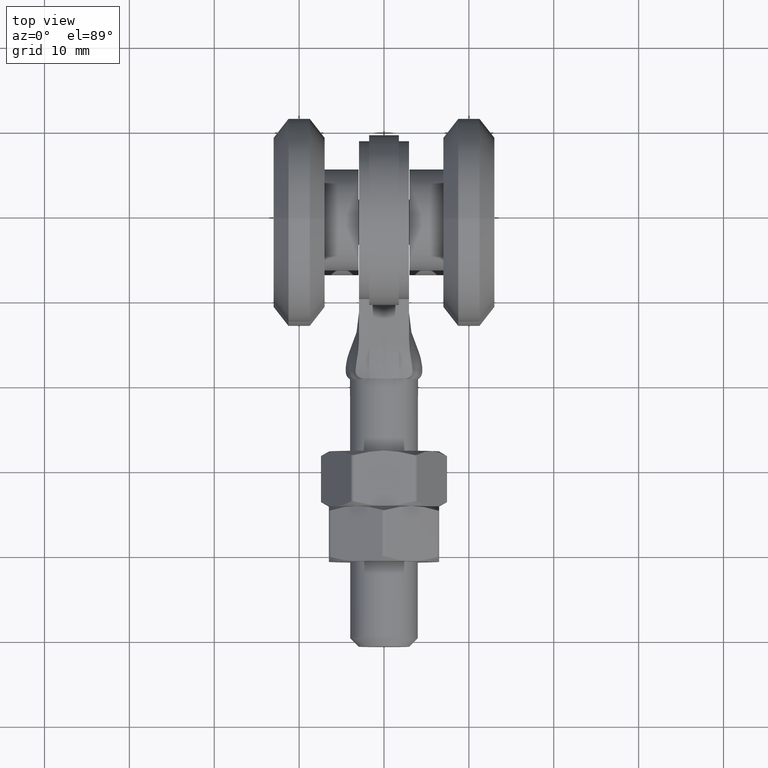
[diagram: clean part render]
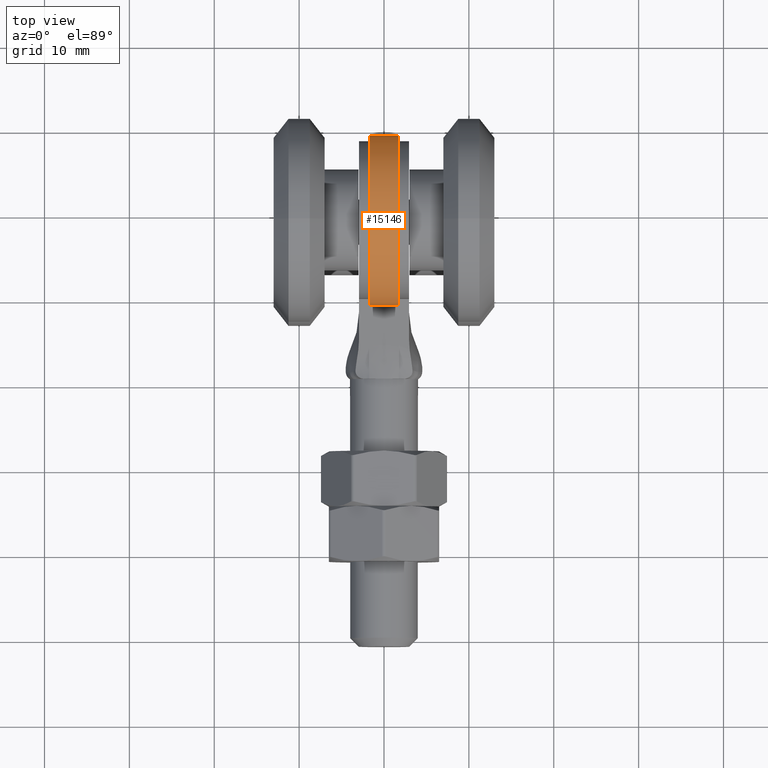
[diagram: same view with one face highlighted and labeled with its STEP entity id]
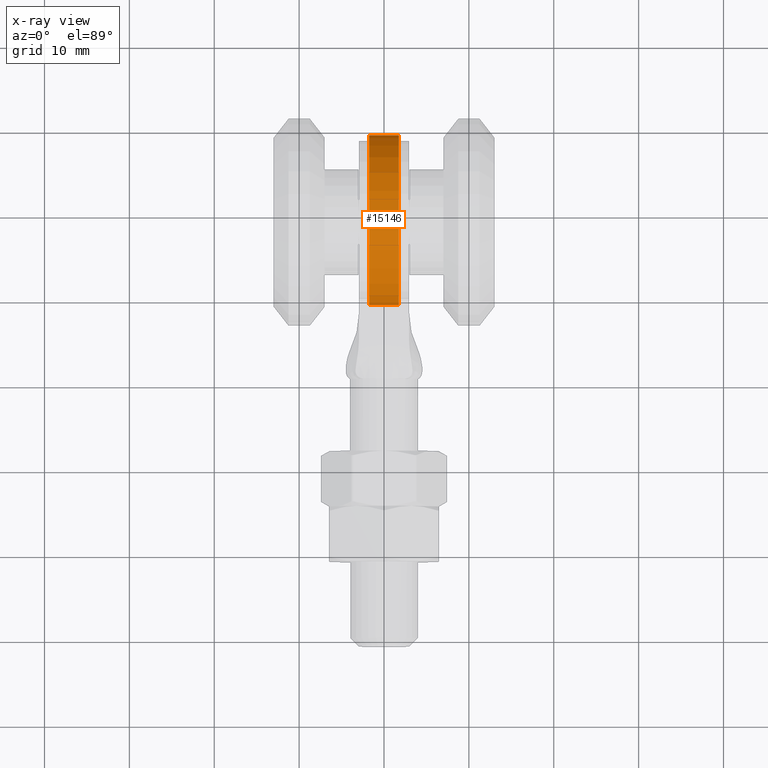
[diagram: x-ray of the same camera — body ghosted, the highlighted face saturated]
A machine part, top view. The second image highlights one B-rep face of the part: STEP entity #15146.
The next image is the same camera in x-ray: the body ghosted, the highlighted face saturated — about 0% of this face is hidden behind the body in this view.
In plain terms, the highlighted cylindrical surface (partial cylindrical patch) has radius 10 mm, axis along (-1, -0, -0).
Its self-contained STEP definition (entity closure, byte-faithful):
#1503 = ORIENTED_EDGE ( 'NONE', *, *, #23207, .T. ) ;
#1582 = CARTESIAN_POINT ( 'NONE',  ( 1.750000000000000444, 10.20014204660097334, 10.25000000000000533 ) ) ;
#2911 = CYLINDRICAL_SURFACE ( 'NONE', #24020, 9.999999999999998224 ) ;
#3755 = CIRCLE ( 'NONE', #5638, 10.00000000000000000 ) ;
#3759 = EDGE_LOOP ( 'NONE', ( #7013, #6142, #12256, #1503 ) ) ;
#3802 = DIRECTION ( 'NONE',  ( 1.000000000000000000, 0.000000000000000000, 0.000000000000000000 ) ) ;
#4246 = VERTEX_POINT ( 'NONE', #11110 ) ;
#4956 = CARTESIAN_POINT ( 'NONE',  ( -1.750000000000000444, 18.99999999999999645, 15.00000000000000355 ) ) ;
#5002 = DIRECTION ( 'NONE',  ( 0.000000000000000000, 0.000000000000000000, 1.000000000000000000 ) ) ;
#5187 = VERTEX_POINT ( 'NONE', #1582 ) ;
#5638 = AXIS2_PLACEMENT_3D ( 'NONE', #4956, #20724, #20536 ) ;
#6142 = ORIENTED_EDGE ( 'NONE', *, *, #26174, .F. ) ;
#7013 = ORIENTED_EDGE ( 'NONE', *, *, #7355, .T. ) ;
#7355 = EDGE_CURVE ( 'NONE', #20557, #4246, #3755, .T. ) ;
#7425 = CARTESIAN_POINT ( 'NONE',  ( 2.950000000000000178, 18.99999999999999645, 15.00000000000000355 ) ) ;
#9408 = DIRECTION ( 'NONE',  ( -1.000000000000000000, -0.000000000000000000, -0.000000000000000000 ) ) ;
#9999 = AXIS2_PLACEMENT_3D ( 'NONE', #24185, #3802, #24273 ) ;
#10295 = DIRECTION ( 'NONE',  ( -1.000000000000000000, -0.000000000000000000, -0.000000000000000000 ) ) ;
#10392 = CARTESIAN_POINT ( 'NONE',  ( 2.950000000000000178, 10.20014204660097334, 10.25000000000000533 ) ) ;
#11110 = CARTESIAN_POINT ( 'NONE',  ( -1.750000000000000444, 10.20014204660097334, 10.25000000000000533 ) ) ;
#11439 = DIRECTION ( 'NONE',  ( -1.000000000000000000, -0.000000000000000000, -0.000000000000000000 ) ) ;
#12256 = ORIENTED_EDGE ( 'NONE', *, *, #20866, .F. ) ;
#13648 = LINE ( 'NONE', #20156, #29179 ) ;
#14950 = FACE_OUTER_BOUND ( 'NONE', #3759, .T. ) ;
#15146 = ADVANCED_FACE ( 'NONE', ( #14950 ), #2911, .T. ) ;
#17095 = LINE ( 'NONE', #10392, #22375 ) ;
#17258 = CARTESIAN_POINT ( 'NONE',  ( 1.750000000000000444, 24.99999999999999289, 7.000000000000000888 ) ) ;
#20156 = CARTESIAN_POINT ( 'NONE',  ( 2.950000000000000178, 24.99999999999999289, 7.000000000000000888 ) ) ;
#20536 = DIRECTION ( 'NONE',  ( 0.000000000000000000, 0.000000000000000000, -1.000000000000000000 ) ) ;
#20557 = VERTEX_POINT ( 'NONE', #25894 ) ;
#20724 = DIRECTION ( 'NONE',  ( 1.000000000000000000, -0.000000000000000000, -0.000000000000000000 ) ) ;
#20866 = EDGE_CURVE ( 'NONE', #28431, #5187, #23259, .T. ) ;
#22375 = VECTOR ( 'NONE', #10295, 1000.000000000000000 ) ;
#23207 = EDGE_CURVE ( 'NONE', #28431, #20557, #13648, .T. ) ;
#23259 = CIRCLE ( 'NONE', #9999, 10.00000000000000000 ) ;
#24020 = AXIS2_PLACEMENT_3D ( 'NONE', #7425, #9408, #5002 ) ;
#24185 = CARTESIAN_POINT ( 'NONE',  ( 1.750000000000000444, 18.99999999999999645, 15.00000000000000355 ) ) ;
#24273 = DIRECTION ( 'NONE',  ( 0.000000000000000000, 0.000000000000000000, -1.000000000000000000 ) ) ;
#25894 = CARTESIAN_POINT ( 'NONE',  ( -1.750000000000000444, 24.99999999999999289, 7.000000000000000888 ) ) ;
#26174 = EDGE_CURVE ( 'NONE', #5187, #4246, #17095, .T. ) ;
#28431 = VERTEX_POINT ( 'NONE', #17258 ) ;
#29179 = VECTOR ( 'NONE', #11439, 1000.000000000000000 ) ;